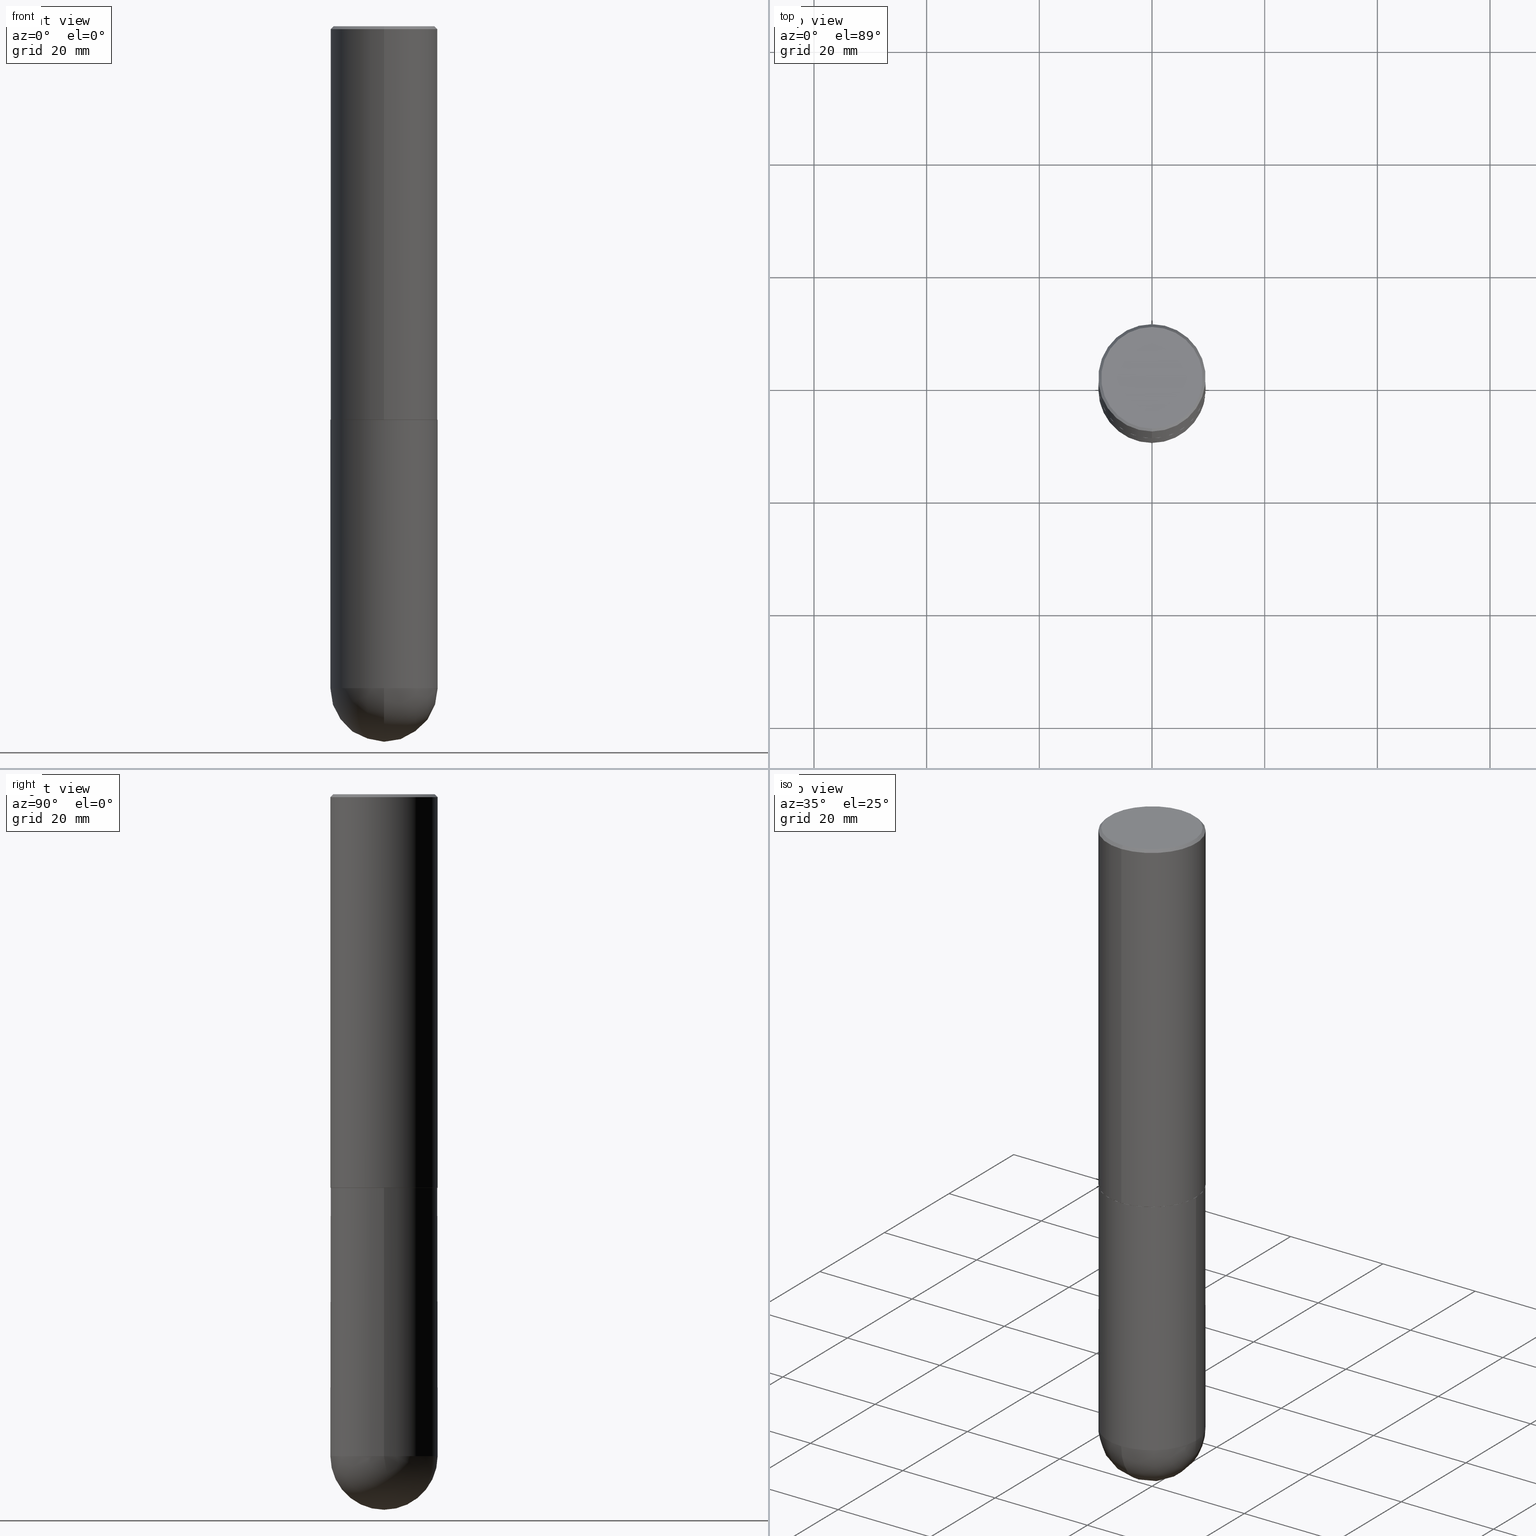
[diagram: canonical four-view strip — front | top / right | iso, engineering-drawing reading convention]
A machine part, canonical four-view strip (front | top / right | iso — engineering-drawing reading convention). The complete STEP part file that produces these views, byte-faithful:
ISO-10303-21;
HEADER;
FILE_DESCRIPTION (( 'STEP AP203' ),
    '1' );
FILE_NAME ('31798.STEP',
    '2024-02-21T16:58:11',
    ( '' ),
    ( '' ),
    'SwSTEP 2.0',
    'SolidWorks 2023',
    '' );
FILE_SCHEMA (( 'CONFIG_CONTROL_DESIGN' ));
ENDSEC;

DATA;
#1 = FACE_OUTER_BOUND ( 'NONE', #400, .T. ) ;
#2 = AXIS2_PLACEMENT_3D ( 'NONE', #162, #359, #22 ) ;
#3 = CARTESIAN_POINT ( 'NONE',  ( -2.921739217016642463E-45, 4.171151621339831914E-31, 1.194710862312470244E-16 ) ) ;
#4 = PERSON_AND_ORGANIZATION_ROLE ( 'classification_officer' ) ;
#5 = EDGE_CURVE ( 'NONE', #25, #55, #231, .T. ) ;
#6 = COORDINATED_UNIVERSAL_TIME_OFFSET ( 5, 0, .BEHIND. ) ;
#7 = DATE_AND_TIME ( #155, #338 ) ;
#8 = CARTESIAN_POINT ( 'NONE',  ( -0.3750000000000001110, 2.664535259100376486E-15, -1.844600658845590159E-29 ) ) ;
#9 = MECHANICAL_CONTEXT ( 'NONE', #326, 'mechanical' ) ;
#10 = DIRECTION ( 'NONE',  ( 1.000000000000000000, -6.982962677686265922E-15, 4.876176775795935793E-29 ) ) ;
#11 = AXIS2_PLACEMENT_3D ( 'NONE', #139, #130, #354 ) ;
#12 = SHAPE_DEFINITION_REPRESENTATION ( #217, #167 ) ;
#13 = COORDINATED_UNIVERSAL_TIME_OFFSET ( 5, 0, .BEHIND. ) ;
#14 = ORIENTED_EDGE ( 'NONE', *, *, #368, .T. ) ;
#15 = CARTESIAN_POINT ( 'NONE',  ( -2.664535259100265651E-15, -0.3750000000000165978, -4.624999999999999112 ) ) ;
#16 = ADVANCED_FACE ( 'NONE', ( #37 ), #81, .T. ) ;
#17 = DATE_AND_TIME ( #351, #150 ) ;
#18 = ORIENTED_EDGE ( 'NONE', *, *, #147, .T. ) ;
#19 = AXIS2_PLACEMENT_3D ( 'NONE', #330, #298, #24 ) ;
#20 = AXIS2_PLACEMENT_3D ( 'NONE', #59, #144, #270 ) ;
#21 = ORIENTED_EDGE ( 'NONE', *, *, #235, .T. ) ;
#22 = DIRECTION ( 'NONE',  ( -6.982962677686266711E-15, -1.000000000000000000, 3.494488891895537218E-15 ) ) ;
#23 = ORIENTED_EDGE ( 'NONE', *, *, #108, .T. ) ;
#24 = DIRECTION ( 'NONE',  ( -6.982962677686265922E-15, -1.000000000000000000, 2.913971193241877216E-15 ) ) ;
#25 = VERTEX_POINT ( 'NONE', #76 ) ;
#26 = DIRECTION ( 'NONE',  ( -2.445468806185136597E-29, 3.491481338843145583E-15, 1.000000000000000000 ) ) ;
#27 = ADVANCED_FACE ( 'NONE', ( #386 ), #48, .T. ) ;
#28 = CARTESIAN_POINT ( 'NONE',  ( 0.000000000000000000, 0.000000000000000000, 0.000000000000000000 ) ) ;
#29 = CIRCLE ( 'NONE', #345, 0.3750000000000001110 ) ;
#30 = AXIS2_PLACEMENT_3D ( 'NONE', #277, #373, #123 ) ;
#31 = ORIENTED_EDGE ( 'NONE', *, *, #178, .F. ) ;
#32 = AXIS2_PLACEMENT_3D ( 'NONE', #249, #159, #41 ) ;
#33 = DIMENSIONAL_EXPONENTS ( 1.000000000000000000, 0.000000000000000000, 0.000000000000000000, 0.000000000000000000, 0.000000000000000000, 0.000000000000000000, 0.000000000000000000 ) ;
#34 = PERSON_AND_ORGANIZATION ( #120, #112 ) ;
#35 = MANIFOLD_SOLID_BREP ( 'Body-Move/Copy2[2]', #152 ) ;
#36 = CARTESIAN_POINT ( 'NONE',  ( -2.572686749164323153E-15, -0.3750000000000000555, -0.01999999999999877570 ) ) ;
#37 = FACE_OUTER_BOUND ( 'NONE', #353, .T. ) ;
#38 =( NAMED_UNIT ( * ) SI_UNIT ( $, .STERADIAN. ) SOLID_ANGLE_UNIT ( ) );
#39 = CARTESIAN_POINT ( 'NONE',  ( 0.000000000000000000, 0.000000000000000000, 0.000000000000000000 ) ) ;
#40 = EDGE_CURVE ( 'NONE', #302, #335, #181, .T. ) ;
#41 = DIRECTION ( 'NONE',  ( 1.000000000000000000, 0.000000000000000000, 0.000000000000000000 ) ) ;
#42 = CONICAL_SURFACE ( 'NONE', #232, 0.3739999999999999991, 0.7853981633980288146 ) ;
#43 = CARTESIAN_POINT ( 'NONE',  ( 2.618611004132350016E-15, 0.3749999999999998890, -0.02000000000000139513 ) ) ;
#44 =( CONVERSION_BASED_UNIT ( 'INCH', #281 ) LENGTH_UNIT ( ) NAMED_UNIT ( #33 ) );
#45 = CARTESIAN_POINT ( 'NONE',  ( 1.131029322860625676E-28, -1.614810119214955014E-14, -4.625000000000000000 ) ) ;
#46 = ORIENTED_EDGE ( 'NONE', *, *, #58, .F. ) ;
#47 = ORIENTED_EDGE ( 'NONE', *, *, #124, .T. ) ;
#48 = CONICAL_SURFACE ( 'NONE', #236, 0.3749999999999999445, 0.7853981633974463916 ) ;
#49 = AXIS2_PLACEMENT_3D ( 'NONE', #69, #188, #156 ) ;
#50 = VERTEX_POINT ( 'NONE', #265 ) ;
#51 = PRODUCT ( '31798', '31798', '', ( #9 ) ) ;
#52 = ADVANCED_FACE ( 'NONE', ( #133 ), #262, .T. ) ;
#53 = EDGE_LOOP ( 'NONE', ( #388, #75, #286, #14 ) ) ;
#54 =( GEOMETRIC_REPRESENTATION_CONTEXT ( 3 ) GLOBAL_UNCERTAINTY_ASSIGNED_CONTEXT ( ( #261 ) ) GLOBAL_UNIT_ASSIGNED_CONTEXT ( ( #44, #319, #38 ) ) REPRESENTATION_CONTEXT ( 'NONE', 'WORKASPACE' ) );
#55 = VERTEX_POINT ( 'NONE', #43 ) ;
#56 = FACE_OUTER_BOUND ( 'NONE', #53, .T. ) ;
#57 = AXIS2_PLACEMENT_3D ( 'NONE', #276, #412, #278 ) ;
#58 = EDGE_CURVE ( 'NONE', #305, #55, #380, .T. ) ;
#59 = CARTESIAN_POINT ( 'NONE',  ( 1.097917345069237163E-28, -1.662228356028959886E-14, -4.625000000000000000 ) ) ;
#60 = DIRECTION ( 'NONE',  ( 1.000000000000000000, -6.982962677686270655E-15, 0.000000000000000000 ) ) ;
#61 = CARTESIAN_POINT ( 'NONE',  ( 0.3750000000000000555, -1.222018468595100145E-14, -2.750000000000000000 ) ) ;
#62 = ORIENTED_EDGE ( 'NONE', *, *, #95, .T. ) ;
#63 = AXIS2_PLACEMENT_3D ( 'NONE', #92, #177, #340 ) ;
#64 = PRODUCT_DEFINITION ( 'UNKNOWN', '', #289, #398 ) ;
#65 = FACE_OUTER_BOUND ( 'NONE', #300, .T. ) ;
#66 = CIRCLE ( 'NONE', #11, 0.3750000000000003886 ) ;
#67 = CC_DESIGN_PERSON_AND_ORGANIZATION_ASSIGNMENT ( #285, #125, ( #51 ) ) ;
#68 = COORDINATED_UNIVERSAL_TIME_OFFSET ( 5, 0, .BEHIND. ) ;
#69 = CARTESIAN_POINT ( 'NONE',  ( 0.000000000000000000, 0.000000000000000000, 0.000000000000000000 ) ) ;
#70 = DIRECTION ( 'NONE',  ( -1.000000000000000000, 6.982962677686265922E-15, -4.876176775795935793E-29 ) ) ;
#71 = LOCAL_TIME ( 11, 58, 11.00000000000000000, #13 ) ;
#72 = ORIENTED_EDGE ( 'NONE', *, *, #371, .F. ) ;
#73 = APPLICATION_PROTOCOL_DEFINITION ( 'international standard', 'config_control_design', 1994, #326 ) ;
#74 = EDGE_CURVE ( 'NONE', #148, #305, #287, .T. ) ;
#75 = ORIENTED_EDGE ( 'NONE', *, *, #266, .F. ) ;
#76 = CARTESIAN_POINT ( 'NONE',  ( 2.548781377355486718E-15, 0.3549999999999998157, -1.119957525566504299E-15 ) ) ;
#77 = CARTESIAN_POINT ( 'NONE',  ( 4.891123549946413576E-31, -6.982696404494408251E-17, -0.02000000000000008715 ) ) ;
#78 = PERSON_AND_ORGANIZATION ( #120, #112 ) ;
#79 = ORIENTED_EDGE ( 'NONE', *, *, #371, .T. ) ;
#80 = VERTEX_POINT ( 'NONE', #362 ) ;
#81 = SPHERICAL_SURFACE ( 'NONE', #363, 0.3750000000000003886 ) ;
#82 = VECTOR ( 'NONE', #238, 39.37007874015748143 ) ;
#83 = CC_DESIGN_PERSON_AND_ORGANIZATION_ASSIGNMENT ( #104, #224, ( #289 ) ) ;
#84 = ORIENTED_EDGE ( 'NONE', *, *, #40, .T. ) ;
#85 = VERTEX_POINT ( 'NONE', #15 ) ;
#86 = CC_DESIGN_DATE_AND_TIME_ASSIGNMENT ( #189, #99, ( #310 ) ) ;
#87 = ORIENTED_EDGE ( 'NONE', *, *, #314, .F. ) ;
#88 = AXIS2_PLACEMENT_3D ( 'NONE', #242, #370, #245 ) ;
#89 = CYLINDRICAL_SURFACE ( 'NONE', #113, 0.3750000000000001110 ) ;
#90 = CYLINDRICAL_SURFACE ( 'NONE', #307, 0.3750000000000002220 ) ;
#91 = VECTOR ( 'NONE', #247, 39.37007874015748143 ) ;
#92 = CARTESIAN_POINT ( 'NONE',  ( 6.725294881176287672E-29, -9.601207556179767631E-15, -2.749999999999999556 ) ) ;
#93 = CARTESIAN_POINT ( 'NONE',  ( -0.3750000000000000555, -1.021030217788372194E-14, -2.750000000000000000 ) ) ;
#94 = LOCAL_TIME ( 11, 58, 11.00000000000000000, #344 ) ;
#95 = EDGE_CURVE ( 'NONE', #260, #50, #312, .T. ) ;
#96 = APPROVAL_DATE_TIME ( #385, #407 ) ;
#97 = PLANE ( 'NONE',  #272 ) ;
#98 = CIRCLE ( 'NONE', #402, 0.3750000000000004441 ) ;
#99 = DATE_TIME_ROLE ( 'classification_date' ) ;
#100 = PERSON_AND_ORGANIZATION ( #120, #112 ) ;
#101 = DIRECTION ( 'NONE',  ( -2.445468806185136597E-29, 3.491481338843145583E-15, 1.000000000000000000 ) ) ;
#102 = DIRECTION ( 'NONE',  ( -1.000000000000000000, 6.982962677686266711E-15, -4.883557194083113462E-29 ) ) ;
#103 = ORIENTED_EDGE ( 'NONE', *, *, #135, .F. ) ;
#104 = PERSON_AND_ORGANIZATION ( #120, #112 ) ;
#105 = ORIENTED_EDGE ( 'NONE', *, *, #376, .F. ) ;
#106 = DIRECTION ( 'NONE',  ( 6.982962677686266711E-15, 1.000000000000000000, -3.494488891895537218E-15 ) ) ;
#107 = ORIENTED_EDGE ( 'NONE', *, *, #360, .F. ) ;
#108 = EDGE_CURVE ( 'NONE', #367, #302, #66, .T. ) ;
#109 = EDGE_LOOP ( 'NONE', ( #72, #409, #196, #129 ) ) ;
#110 = DIRECTION ( 'NONE',  ( -4.851104656540954020E-15, -0.7071067811865485719, -0.7071067811865464625 ) ) ;
#111 = CARTESIAN_POINT ( 'NONE',  ( 2.618611004132350016E-15, 0.3749999999999998890, -0.02000000000000139513 ) ) ;
#112 = ORGANIZATION ( 'UNSPECIFIED', 'UNSPECIFIED', '' ) ;
#113 = AXIS2_PLACEMENT_3D ( 'NONE', #375, #405, #145 ) ;
#114 = LINE ( 'NONE', #179, #82 ) ;
#115 = DIRECTION ( 'NONE',  ( 6.982962677686265922E-15, 1.000000000000000000, -3.491348202247189162E-15 ) ) ;
#116 = CC_DESIGN_APPROVAL ( #384, ( #310 ) ) ;
#117 = DIRECTION ( 'NONE',  ( 1.000000000000000000, -6.982962677686270655E-15, 0.000000000000000000 ) ) ;
#118 = FACE_OUTER_BOUND ( 'NONE', #138, .T. ) ;
#119 = FACE_OUTER_BOUND ( 'NONE', #131, .T. ) ;
#120 = PERSON ( 'UNSPECIFIED', 'UNSPECIFIED', 'UNSPECIFIED', ('UNSPECIFIED'), ('UNSPECIFIED'), ('UNSPECIFIED') ) ;
#121 = DIRECTION ( 'NONE',  ( -2.445561774973196384E-29, 3.491348202247189162E-15, 1.000000000000000000 ) ) ;
#122 = APPROVAL_DATE_TIME ( #283, #384 ) ;
#123 = DIRECTION ( 'NONE',  ( 1.000000000000000000, -6.982962677686266711E-15, 0.000000000000000000 ) ) ;
#124 = EDGE_CURVE ( 'NONE', #335, #85, #29, .T. ) ;
#125 = PERSON_AND_ORGANIZATION_ROLE ( 'design_owner' ) ;
#126 = LINE ( 'NONE', #322, #268 ) ;
#127 = CYLINDRICAL_SURFACE ( 'NONE', #170, 0.3750000000000001110 ) ;
#128 = ADVANCED_FACE ( 'NONE', ( #205 ), #90, .T. ) ;
#129 = ORIENTED_EDGE ( 'NONE', *, *, #5, .F. ) ;
#130 = DIRECTION ( 'NONE',  ( 1.000000000000000000, -6.982962677686265922E-15, 4.883557194083112340E-29 ) ) ;
#131 = EDGE_LOOP ( 'NONE', ( #84, #264, #31, #107, #254 ) ) ;
#132 = CIRCLE ( 'NONE', #57, 0.3749999999999999445 ) ;
#133 = FACE_OUTER_BOUND ( 'NONE', #323, .T. ) ;
#134 = CARTESIAN_POINT ( 'NONE',  ( -2.611628041454596160E-15, -0.3740000000000096581, -2.749999999999998224 ) ) ;
#135 = EDGE_CURVE ( 'NONE', #365, #80, #292, .T. ) ;
#136 = ORIENTED_EDGE ( 'NONE', *, *, #274, .T. ) ;
#137 = DIRECTION ( 'NONE',  ( -1.000000000000000000, 6.982962677686266711E-15, -4.883557194083113462E-29 ) ) ;
#138 = EDGE_LOOP ( 'NONE', ( #141, #397, #172, #331 ) ) ;
#139 = CARTESIAN_POINT ( 'NONE',  ( 1.097917345069237163E-28, -1.662228356028959886E-14, -4.625000000000000000 ) ) ;
#140 = APPROVAL_PERSON_ORGANIZATION ( #163, #407, #347 ) ;
#141 = ORIENTED_EDGE ( 'NONE', *, *, #168, .T. ) ;
#142 = DIRECTION ( 'NONE',  ( -2.445468806185136597E-29, 3.491481338843145583E-15, 1.000000000000000000 ) ) ;
#143 = EDGE_CURVE ( 'NONE', #169, #195, #284, .T. ) ;
#144 = DIRECTION ( 'NONE',  ( -1.000000000000000000, 7.105427357601001070E-15, -4.926315508542082329E-29 ) ) ;
#145 = DIRECTION ( 'NONE',  ( 1.000000000000000000, -6.982962677686265922E-15, 4.876176775795935793E-29 ) ) ;
#146 = DIRECTION ( 'NONE',  ( 4.937700262164537787E-15, 0.7071067811865436870, -0.7071067811865513475 ) ) ;
#147 = EDGE_CURVE ( 'NONE', #367, #85, #293, .T. ) ;
#148 = VERTEX_POINT ( 'NONE', #306 ) ;
#149 = DIRECTION ( 'NONE',  ( -2.445468806185136877E-29, 3.491481338843145188E-15, 1.000000000000000000 ) ) ;
#150 = LOCAL_TIME ( 11, 58, 11.00000000000000000, #290 ) ;
#151 = CC_DESIGN_PERSON_AND_ORGANIZATION_ASSIGNMENT ( #78, #4, ( #310 ) ) ;
#152 = CLOSED_SHELL ( 'NONE', ( #175, #296, #27, #342, #128, #206, #393, #352 ) ) ;
#153 = CARTESIAN_POINT ( 'NONE',  ( 6.725294881176288793E-29, -9.601207556179769209E-15, -2.750000000000000000 ) ) ;
#154 = CIRCLE ( 'NONE', #187, 0.3549999999999998157 ) ;
#155 = CALENDAR_DATE ( 2024, 21, 2 ) ;
#156 = DIRECTION ( 'NONE',  ( -6.982962677686266711E-15, -1.000000000000000000, 3.491348202247188767E-15 ) ) ;
#157 = AXIS2_PLACEMENT_3D ( 'NONE', #183, #142, #336 ) ;
#158 = CIRCLE ( 'NONE', #204, 0.3739999999999999991 ) ;
#159 = DIRECTION ( 'NONE',  ( 0.000000000000000000, 0.000000000000000000, 1.000000000000000000 ) ) ;
#160 = DIRECTION ( 'NONE',  ( -6.982962677686266711E-15, -1.000000000000000000, 3.491348202247189162E-15 ) ) ;
#161 = MANIFOLD_SOLID_BREP ( 'Body-Move/Copy2[1]', #258 ) ;
#162 = CARTESIAN_POINT ( 'NONE',  ( 4.891123549946413576E-31, -6.982696404494408251E-17, -0.02000000000000008715 ) ) ;
#163 = PERSON_AND_ORGANIZATION ( #120, #112 ) ;
#164 = LOCAL_TIME ( 11, 58, 11.00000000000000000, #6 ) ;
#165 = ORIENTED_EDGE ( 'NONE', *, *, #124, .F. ) ;
#166 = DIRECTION ( 'NONE',  ( 2.445561774973196384E-29, -3.491348202247189162E-15, -1.000000000000000000 ) ) ;
#167 = ADVANCED_BREP_SHAPE_REPRESENTATION ( '31798', ( #161, #35, #32 ), #54 ) ;
#168 = EDGE_CURVE ( 'NONE', #80, #365, #158, .T. ) ;
#169 = VERTEX_POINT ( 'NONE', #93 ) ;
#170 = AXIS2_PLACEMENT_3D ( 'NONE', #39, #101, #10 ) ;
#171 = CARTESIAN_POINT ( 'NONE',  ( 1.097917345069237163E-28, -1.662228356028959886E-14, -4.625000000000000000 ) ) ;
#172 = ORIENTED_EDGE ( 'NONE', *, *, #95, .F. ) ;
#173 = DIRECTION ( 'NONE',  ( 1.000000000000000000, -6.982962677686270655E-15, 0.000000000000000000 ) ) ;
#174 = ORIENTED_EDGE ( 'NONE', *, *, #108, .F. ) ;
#175 = ADVANCED_FACE ( 'NONE', ( #118 ), #369, .T. ) ;
#176 = ORIENTED_EDGE ( 'NONE', *, *, #274, .F. ) ;
#177 = DIRECTION ( 'NONE',  ( -2.445561774973196384E-29, 3.491348202247189162E-15, 1.000000000000000000 ) ) ;
#178 = EDGE_CURVE ( 'NONE', #195, #169, #259, .T. ) ;
#179 = CARTESIAN_POINT ( 'NONE',  ( 2.657429831742841742E-15, 0.3739999999999903957, -2.750000000000000444 ) ) ;
#180 = CARTESIAN_POINT ( 'NONE',  ( 1.191225862093391378E-28, -1.790862693487176734E-14, -5.000000000000000000 ) ) ;
#181 = CIRCLE ( 'NONE', #271, 0.3750000000000001110 ) ;
#182 = PLANE ( 'NONE',  #320 ) ;
#183 = CARTESIAN_POINT ( 'NONE',  ( 6.725039217009124520E-29, -9.601573681818649859E-15, -2.750000000000000000 ) ) ;
#184 = LINE ( 'NONE', #239, #333 ) ;
#185 = DIRECTION ( 'NONE',  ( -2.445561774973196384E-29, 3.491348202247189162E-15, 1.000000000000000000 ) ) ;
#186 = PLANE ( 'NONE',  #364 ) ;
#187 = AXIS2_PLACEMENT_3D ( 'NONE', #3, #121, #214 ) ;
#188 = DIRECTION ( 'NONE',  ( -2.445561774973196384E-29, 3.491348202247189162E-15, 1.000000000000000000 ) ) ;
#189 = DATE_AND_TIME ( #280, #94 ) ;
#190 = DIRECTION ( 'NONE',  ( -2.445468806185136597E-29, 3.491481338843145583E-15, 1.000000000000000000 ) ) ;
#191 = DIRECTION ( 'NONE',  ( -2.445561774973196384E-29, 3.491348202247189162E-15, 1.000000000000000000 ) ) ;
#192 = CC_DESIGN_DATE_AND_TIME_ASSIGNMENT ( #17, #256, ( #64 ) ) ;
#193 = EDGE_LOOP ( 'NONE', ( #226, #21, #136, #332 ) ) ;
#194 = SECURITY_CLASSIFICATION_LEVEL ( 'unclassified' ) ;
#195 = VERTEX_POINT ( 'NONE', #61 ) ;
#196 = ORIENTED_EDGE ( 'NONE', *, *, #58, .T. ) ;
#197 = AXIS2_PLACEMENT_3D ( 'NONE', #77, #396, #106 ) ;
#198 = DIRECTION ( 'NONE',  ( 6.982962677686266711E-15, 1.000000000000000000, -3.494488891895537218E-15 ) ) ;
#199 = EDGE_LOOP ( 'NONE', ( #87, #47, #403, #223, #325 ) ) ;
#200 = EDGE_CURVE ( 'NONE', #50, #55, #337, .T. ) ;
#201 = ORIENTED_EDGE ( 'NONE', *, *, #143, .T. ) ;
#202 = DIRECTION ( 'NONE',  ( -4.937700262167413974E-15, -0.7071067811869555797, 0.7071067811861394548 ) ) ;
#203 = ORIENTED_EDGE ( 'NONE', *, *, #178, .T. ) ;
#204 = AXIS2_PLACEMENT_3D ( 'NONE', #213, #411, #240 ) ;
#205 = FACE_OUTER_BOUND ( 'NONE', #193, .T. ) ;
#206 = ADVANCED_FACE ( 'NONE', ( #1 ), #42, .T. ) ;
#207 = CARTESIAN_POINT ( 'NONE',  ( 2.478951750578623420E-15, 0.3549999999999998157, -1.179693068682128070E-15 ) ) ;
#208 = CARTESIAN_POINT ( 'NONE',  ( 6.725294881176287672E-29, -9.601207556179767631E-15, -2.749999999999999556 ) ) ;
#209 = APPROVAL_PERSON_ORGANIZATION ( #377, #384, #316 ) ;
#210 = FACE_OUTER_BOUND ( 'NONE', #383, .T. ) ;
#211 = VECTOR ( 'NONE', #378, 39.37007874015748143 ) ;
#212 = DIRECTION ( 'NONE',  ( -2.445561774973196384E-29, 3.491348202247189162E-15, 1.000000000000000000 ) ) ;
#213 = CARTESIAN_POINT ( 'NONE',  ( 6.725294881176287672E-29, -9.601207556179767631E-15, -2.749999999999999556 ) ) ;
#214 = DIRECTION ( 'NONE',  ( -6.982962677686266711E-15, -1.000000000000000000, 3.491348202247189162E-15 ) ) ;
#215 = CARTESIAN_POINT ( 'NONE',  ( 0.3750000000000001110, -1.549344844111645238E-14, -4.625000000000000000 ) ) ;
#216 = APPROVAL_ROLE ( '' ) ;
#217 = PRODUCT_DEFINITION_SHAPE ( 'NONE', 'NONE',  #64 ) ;
#218 = APPROVAL_DATE_TIME ( #7, #309 ) ;
#219 = FACE_OUTER_BOUND ( 'NONE', #358, .T. ) ;
#220 = ADVANCED_FACE ( 'NONE', ( #119 ), #89, .T. ) ;
#221 = PERSON_AND_ORGANIZATION_ROLE ( 'creator' ) ;
#222 = CARTESIAN_POINT ( 'NONE',  ( -2.921739217016642463E-45, 4.171151621339831914E-31, 1.194710862312470244E-16 ) ) ;
#223 = ORIENTED_EDGE ( 'NONE', *, *, #360, .T. ) ;
#224 = PERSON_AND_ORGANIZATION_ROLE ( 'creator' ) ;
#225 = FACE_OUTER_BOUND ( 'NONE', #297, .T. ) ;
#226 = ORIENTED_EDGE ( 'NONE', *, *, #200, .F. ) ;
#227 = DIRECTION ( 'NONE',  ( 6.982962677686266711E-15, 1.000000000000000000, -2.913971193241878005E-15 ) ) ;
#228 = CC_DESIGN_APPROVAL ( #407, ( #64 ) ) ;
#229 = ORIENTED_EDGE ( 'NONE', *, *, #288, .F. ) ;
#230 = VECTOR ( 'NONE', #110, 39.37007874015748143 ) ;
#231 = LINE ( 'NONE', #111, #390 ) ;
#232 = AXIS2_PLACEMENT_3D ( 'NONE', #208, #212, #304 ) ;
#233 = PRODUCT_RELATED_PRODUCT_CATEGORY ( 'detail', '', ( #51 ) ) ;
#234 = ORIENTED_EDGE ( 'NONE', *, *, #168, .F. ) ;
#235 = EDGE_CURVE ( 'NONE', #50, #260, #98, .T. ) ;
#236 = AXIS2_PLACEMENT_3D ( 'NONE', #389, #166, #198 ) ;
#237 = AXIS2_PLACEMENT_3D ( 'NONE', #303, #26, #117 ) ;
#238 = DIRECTION ( 'NONE',  ( 5.024295867790978808E-15, 0.7071067811869604647, 0.7071067811861345698 ) ) ;
#239 = CARTESIAN_POINT ( 'NONE',  ( 0.3750000000000001110, -2.618611004132350411E-15, 1.828566290923476483E-29 ) ) ;
#240 = DIRECTION ( 'NONE',  ( -6.982962677686266711E-15, -1.000000000000000000, 2.921762560068730595E-15 ) ) ;
#241 = DIRECTION ( 'NONE',  ( -2.445561774973196103E-29, 3.491348202247189162E-15, 1.000000000000000000 ) ) ;
#242 = CARTESIAN_POINT ( 'NONE',  ( 6.725294881176287672E-29, -9.601207556179767631E-15, -2.749999999999999556 ) ) ;
#243 = DIRECTION ( 'NONE',  ( -6.982962677686266711E-15, -1.000000000000000000, 3.491348202247188767E-15 ) ) ;
#244 =( LENGTH_UNIT ( ) NAMED_UNIT ( * ) SI_UNIT ( $, .METRE. ) );
#245 = DIRECTION ( 'NONE',  ( -6.982962677686266711E-15, -1.000000000000000000, 2.921762560068730595E-15 ) ) ;
#246 = CALENDAR_DATE ( 2024, 21, 2 ) ;
#247 = DIRECTION ( 'NONE',  ( -2.445468806185136877E-29, 3.491481338843145188E-15, 1.000000000000000000 ) ) ;
#248 = EDGE_CURVE ( 'NONE', #365, #50, #114, .T. ) ;
#249 = CARTESIAN_POINT ( 'NONE',  ( 0.000000000000000000, 0.000000000000000000, 0.000000000000000000 ) ) ;
#250 = FACE_OUTER_BOUND ( 'NONE', #199, .T. ) ;
#251 = APPLICATION_CONTEXT ( 'configuration controlled 3d designs of mechanical parts and assemblies' ) ;
#252 = CALENDAR_DATE ( 2024, 21, 2 ) ;
#253 = APPLICATION_PROTOCOL_DEFINITION ( 'international standard', 'config_control_design', 1994, #251 ) ;
#254 = ORIENTED_EDGE ( 'NONE', *, *, #288, .T. ) ;
#255 = CARTESIAN_POINT ( 'NONE',  ( 1.131029322860625676E-28, -1.614810119214955014E-14, -4.625000000000000000 ) ) ;
#256 = DATE_TIME_ROLE ( 'creation_date' ) ;
#257 = DIRECTION ( 'NONE',  ( 1.000000000000000000, -6.982962677686270655E-15, 0.000000000000000000 ) ) ;
#258 = CLOSED_SHELL ( 'NONE', ( #220, #16, #52, #334, #269 ) ) ;
#259 = CIRCLE ( 'NONE', #30, 0.3750000000000000555 ) ;
#260 = VERTEX_POINT ( 'NONE', #348 ) ;
#261 = UNCERTAINTY_MEASURE_WITH_UNIT (LENGTH_MEASURE( 1.000000000000000082E-05 ), #44, 'distance_accuracy_value', 'NONE');
#262 = SPHERICAL_SURFACE ( 'NONE', #404, 0.3750000000000003886 ) ;
#263 = ORIENTED_EDGE ( 'NONE', *, *, #135, .T. ) ;
#264 = ORIENTED_EDGE ( 'NONE', *, *, #314, .T. ) ;
#265 = CARTESIAN_POINT ( 'NONE',  ( 2.664535259100411985E-15, 0.3749999999999907851, -2.749000000000000998 ) ) ;
#266 = EDGE_CURVE ( 'NONE', #25, #148, #346, .T. ) ;
#267 = ORIENTED_EDGE ( 'NONE', *, *, #235, .F. ) ;
#268 = VECTOR ( 'NONE', #191, 39.37007874015748143 ) ;
#269 = ADVANCED_FACE ( 'NONE', ( #250 ), #127, .T. ) ;
#270 = DIRECTION ( 'NONE',  ( -7.105427357600999492E-15, -1.000000000000000000, 0.000000000000000000 ) ) ;
#271 = AXIS2_PLACEMENT_3D ( 'NONE', #321, #295, #173 ) ;
#272 = AXIS2_PLACEMENT_3D ( 'NONE', #382, #350, #70 ) ;
#273 = ORIENTED_EDGE ( 'NONE', *, *, #248, .F. ) ;
#274 = EDGE_CURVE ( 'NONE', #260, #305, #126, .T. ) ;
#275 = DIRECTION ( 'NONE',  ( -2.445561774973196384E-29, 3.491348202247189162E-15, 1.000000000000000000 ) ) ;
#276 = CARTESIAN_POINT ( 'NONE',  ( 4.891123549946413576E-31, -6.982696404494408251E-17, -0.02000000000000008715 ) ) ;
#277 = CARTESIAN_POINT ( 'NONE',  ( 6.725039217009124520E-29, -9.601573681818649859E-15, -2.750000000000000000 ) ) ;
#278 = DIRECTION ( 'NONE',  ( -6.982962677686266711E-15, -1.000000000000000000, 3.494488891895537218E-15 ) ) ;
#279 = DIRECTION ( 'NONE',  ( -6.982962677686265922E-15, -1.000000000000000000, 3.491348202247189162E-15 ) ) ;
#280 = CALENDAR_DATE ( 2024, 21, 2 ) ;
#281 = LENGTH_MEASURE_WITH_UNIT ( LENGTH_MEASURE( 0.02539999999999999897 ), #244 );
#282 = DIRECTION ( 'NONE',  ( -2.445561774973196384E-29, 3.491348202247189162E-15, 1.000000000000000000 ) ) ;
#283 = DATE_AND_TIME ( #246, #164 ) ;
#284 = CIRCLE ( 'NONE', #157, 0.3750000000000000555 ) ;
#285 = PERSON_AND_ORGANIZATION ( #120, #112 ) ;
#286 = ORIENTED_EDGE ( 'NONE', *, *, #5, .T. ) ;
#287 = LINE ( 'NONE', #399, #230 ) ;
#288 = EDGE_CURVE ( 'NONE', #394, #302, #313, .T. ) ;
#289 = PRODUCT_DEFINITION_FORMATION_WITH_SPECIFIED_SOURCE ( 'ANY', '', #51, .NOT_KNOWN. ) ;
#290 = COORDINATED_UNIVERSAL_TIME_OFFSET ( 5, 0, .BEHIND. ) ;
#291 = ORIENTED_EDGE ( 'NONE', *, *, #147, .F. ) ;
#292 = CIRCLE ( 'NONE', #63, 0.3739999999999999991 ) ;
#293 = CIRCLE ( 'NONE', #20, 0.3750000000000003886 ) ;
#294 = ORIENTED_EDGE ( 'NONE', *, *, #339, .T. ) ;
#295 = DIRECTION ( 'NONE',  ( -2.445468806185136597E-29, 3.491481338843145583E-15, 1.000000000000000000 ) ) ;
#296 = ADVANCED_FACE ( 'NONE', ( #225 ), #357, .T. ) ;
#297 = EDGE_LOOP ( 'NONE', ( #62, #361, #46, #176 ) ) ;
#298 = DIRECTION ( 'NONE',  ( -2.445561774973196384E-29, 3.491348202247189162E-15, 1.000000000000000000 ) ) ;
#299 = APPROVAL_PERSON_ORGANIZATION ( #34, #309, #216 ) ;
#300 = EDGE_LOOP ( 'NONE', ( #234, #103 ) ) ;
#301 = CC_DESIGN_PERSON_AND_ORGANIZATION_ASSIGNMENT ( #356, #324, ( #289 ) ) ;
#302 = VERTEX_POINT ( 'NONE', #315 ) ;
#303 = CARTESIAN_POINT ( 'NONE',  ( 1.131029322860625676E-28, -1.614810119214955014E-14, -4.625000000000000000 ) ) ;
#304 = DIRECTION ( 'NONE',  ( -6.982962677686266711E-15, -1.000000000000000000, 2.921762560068730595E-15 ) ) ;
#305 = VERTEX_POINT ( 'NONE', #36 ) ;
#306 = CARTESIAN_POINT ( 'NONE',  ( -2.504081769186607821E-15, -0.3549999999999998157, 1.358899698028998397E-15 ) ) ;
#307 = AXIS2_PLACEMENT_3D ( 'NONE', #28, #275, #243 ) ;
#308 = AXIS2_PLACEMENT_3D ( 'NONE', #45, #190, #257 ) ;
#309 = APPROVAL ( #392, 'UNSPECIFIED' ) ;
#310 = SECURITY_CLASSIFICATION ( '', '', #194 ) ;
#311 = DIRECTION ( 'NONE',  ( -6.982962677686265922E-15, -1.000000000000000000, 2.913971193241877216E-15 ) ) ;
#312 = CIRCLE ( 'NONE', #19, 0.3750000000000004441 ) ;
#313 = CIRCLE ( 'NONE', #308, 0.3750000000000001110 ) ;
#314 = EDGE_CURVE ( 'NONE', #335, #169, #317, .T. ) ;
#315 = CARTESIAN_POINT ( 'NONE',  ( 2.618611004132463218E-15, 0.3749999999999838463, -4.625000000000000888 ) ) ;
#316 = APPROVAL_ROLE ( '' ) ;
#317 = LINE ( 'NONE', #8, #91 ) ;
#318 = CARTESIAN_POINT ( 'NONE',  ( -0.3750000000000001110, -1.021030217788372352E-14, -4.625000000000000000 ) ) ;
#319 =( NAMED_UNIT ( * ) PLANE_ANGLE_UNIT ( ) SI_UNIT ( $, .RADIAN. ) );
#320 = AXIS2_PLACEMENT_3D ( 'NONE', #207, #408, #115 ) ;
#321 = CARTESIAN_POINT ( 'NONE',  ( 1.131029322860625676E-28, -1.614810119214955014E-14, -4.625000000000000000 ) ) ;
#322 = CARTESIAN_POINT ( 'NONE',  ( -2.618611004132351594E-15, -0.3750000000000002220, 1.309255575842696626E-15 ) ) ;
#323 = EDGE_LOOP ( 'NONE', ( #291, #23, #229, #105 ) ) ;
#324 = PERSON_AND_ORGANIZATION_ROLE ( 'design_supplier' ) ;
#325 = ORIENTED_EDGE ( 'NONE', *, *, #143, .F. ) ;
#326 = APPLICATION_CONTEXT ( 'configuration controlled 3d designs of mechanical parts and assemblies' ) ;
#327 = CC_DESIGN_PERSON_AND_ORGANIZATION_ASSIGNMENT ( #100, #221, ( #64 ) ) ;
#328 = VECTOR ( 'NONE', #202, 39.37007874015748143 ) ;
#329 = ORIENTED_EDGE ( 'NONE', *, *, #266, .T. ) ;
#330 = CARTESIAN_POINT ( 'NONE',  ( 6.722849319401317549E-29, -9.597716207977523912E-15, -2.749000000000000110 ) ) ;
#331 = ORIENTED_EDGE ( 'NONE', *, *, #339, .F. ) ;
#332 = ORIENTED_EDGE ( 'NONE', *, *, #368, .F. ) ;
#333 = VECTOR ( 'NONE', #149, 39.37007874015748143 ) ;
#334 = ADVANCED_FACE ( 'NONE', ( #219 ), #97, .F. ) ;
#335 = VERTEX_POINT ( 'NONE', #318 ) ;
#336 = DIRECTION ( 'NONE',  ( 1.000000000000000000, -6.982962677686266711E-15, 0.000000000000000000 ) ) ;
#337 = LINE ( 'NONE', #374, #211 ) ;
#338 = LOCAL_TIME ( 11, 58, 11.00000000000000000, #68 ) ;
#339 = EDGE_CURVE ( 'NONE', #80, #260, #366, .T. ) ;
#340 = DIRECTION ( 'NONE',  ( -6.982962677686266711E-15, -1.000000000000000000, 2.921762560068730595E-15 ) ) ;
#341 = CARTESIAN_POINT ( 'NONE',  ( 6.722849319401317549E-29, -9.597716207977523912E-15, -2.749000000000000110 ) ) ;
#342 = ADVANCED_FACE ( 'NONE', ( #56 ), #381, .T. ) ;
#343 = CC_DESIGN_APPROVAL ( #309, ( #289 ) ) ;
#344 = COORDINATED_UNIVERSAL_TIME_OFFSET ( 5, 0, .BEHIND. ) ;
#345 = AXIS2_PLACEMENT_3D ( 'NONE', #255, #410, #60 ) ;
#346 = CIRCLE ( 'NONE', #406, 0.3549999999999998157 ) ;
#347 = APPROVAL_ROLE ( '' ) ;
#348 = CARTESIAN_POINT ( 'NONE',  ( -2.618611004132285330E-15, -0.3750000000000100475, -2.748999999999999222 ) ) ;
#349 = APPROVAL_STATUS ( 'not_yet_approved' ) ;
#350 = DIRECTION ( 'NONE',  ( 2.438088387897960049E-29, -3.491481338843145188E-15, -1.000000000000000000 ) ) ;
#351 = CALENDAR_DATE ( 2024, 21, 2 ) ;
#352 = ADVANCED_FACE ( 'NONE', ( #210 ), #182, .F. ) ;
#353 = EDGE_LOOP ( 'NONE', ( #174, #18, #165, #355 ) ) ;
#354 = DIRECTION ( 'NONE',  ( 6.982962677686265922E-15, 1.000000000000000000, 0.000000000000000000 ) ) ;
#355 = ORIENTED_EDGE ( 'NONE', *, *, #40, .F. ) ;
#356 = PERSON_AND_ORGANIZATION ( #120, #112 ) ;
#357 = CYLINDRICAL_SURFACE ( 'NONE', #49, 0.3750000000000002220 ) ;
#358 = EDGE_LOOP ( 'NONE', ( #203, #201 ) ) ;
#359 = DIRECTION ( 'NONE',  ( -2.445561774973196384E-29, 3.491348202247189162E-15, 1.000000000000000000 ) ) ;
#360 = EDGE_CURVE ( 'NONE', #394, #195, #184, .T. ) ;
#361 = ORIENTED_EDGE ( 'NONE', *, *, #200, .T. ) ;
#362 = CARTESIAN_POINT ( 'NONE',  ( -2.611628041454596160E-15, -0.3740000000000096581, -2.749999999999998224 ) ) ;
#363 = AXIS2_PLACEMENT_3D ( 'NONE', #171, #102, #227 ) ;
#364 = AXIS2_PLACEMENT_3D ( 'NONE', #153, #241, #279 ) ;
#365 = VERTEX_POINT ( 'NONE', #372 ) ;
#366 = LINE ( 'NONE', #134, #328 ) ;
#367 = VERTEX_POINT ( 'NONE', #180 ) ;
#368 = EDGE_CURVE ( 'NONE', #55, #305, #132, .T. ) ;
#369 = CONICAL_SURFACE ( 'NONE', #88, 0.3739999999999999991, 0.7853981633980288146 ) ;
#370 = DIRECTION ( 'NONE',  ( -2.445561774973196384E-29, 3.491348202247189162E-15, 1.000000000000000000 ) ) ;
#371 = EDGE_CURVE ( 'NONE', #148, #25, #154, .T. ) ;
#372 = CARTESIAN_POINT ( 'NONE',  ( 2.660982545421643429E-15, 0.3739999999999903957, -2.750000000000000444 ) ) ;
#373 = DIRECTION ( 'NONE',  ( -2.445468806185136597E-29, 3.491481338843145583E-15, 1.000000000000000000 ) ) ;
#374 = CARTESIAN_POINT ( 'NONE',  ( 2.664535259100376880E-15, 0.3750000000000002220, -1.309255575842696626E-15 ) ) ;
#375 = CARTESIAN_POINT ( 'NONE',  ( 0.000000000000000000, 0.000000000000000000, 0.000000000000000000 ) ) ;
#376 = EDGE_CURVE ( 'NONE', #85, #394, #391, .T. ) ;
#377 = PERSON_AND_ORGANIZATION ( #120, #112 ) ;
#378 = DIRECTION ( 'NONE',  ( -2.445561774973196384E-29, 3.491348202247189162E-15, 1.000000000000000000 ) ) ;
#379 = APPROVAL_STATUS ( 'not_yet_approved' ) ;
#380 = CIRCLE ( 'NONE', #2, 0.3749999999999999445 ) ;
#381 = CONICAL_SURFACE ( 'NONE', #197, 0.3749999999999999445, 0.7853981633974463916 ) ;
#382 = CARTESIAN_POINT ( 'NONE',  ( 2.618611004132417464E-15, 0.3749999999999903966, -2.750000000000000888 ) ) ;
#383 = EDGE_LOOP ( 'NONE', ( #329, #79 ) ) ;
#384 = APPROVAL ( #349, 'UNSPECIFIED' ) ;
#385 = DATE_AND_TIME ( #252, #71 ) ;
#386 = FACE_OUTER_BOUND ( 'NONE', #109, .T. ) ;
#387 = CC_DESIGN_SECURITY_CLASSIFICATION ( #310, ( #289 ) ) ;
#388 = ORIENTED_EDGE ( 'NONE', *, *, #74, .F. ) ;
#389 = CARTESIAN_POINT ( 'NONE',  ( 4.891123549946413576E-31, -6.982696404494408251E-17, -0.02000000000000008715 ) ) ;
#390 = VECTOR ( 'NONE', #146, 39.37007874015748143 ) ;
#391 = CIRCLE ( 'NONE', #237, 0.3750000000000001110 ) ;
#392 = APPROVAL_STATUS ( 'not_yet_approved' ) ;
#393 = ADVANCED_FACE ( 'NONE', ( #65 ), #186, .F. ) ;
#394 = VERTEX_POINT ( 'NONE', #215 ) ;
#395 = CARTESIAN_POINT ( 'NONE',  ( 1.097917345069237163E-28, -1.662228356028959886E-14, -4.625000000000000000 ) ) ;
#396 = DIRECTION ( 'NONE',  ( 2.445561774973196384E-29, -3.491348202247189162E-15, -1.000000000000000000 ) ) ;
#397 = ORIENTED_EDGE ( 'NONE', *, *, #248, .T. ) ;
#398 = DESIGN_CONTEXT ( 'detailed design', #251, 'design' ) ;
#399 = CARTESIAN_POINT ( 'NONE',  ( -2.572686749164323153E-15, -0.3750000000000000555, -0.01999999999999877570 ) ) ;
#400 = EDGE_LOOP ( 'NONE', ( #273, #263, #294, #267 ) ) ;
#401 = DIRECTION ( 'NONE',  ( 6.982962677686266711E-15, 1.000000000000000000, -2.913971193241878005E-15 ) ) ;
#402 = AXIS2_PLACEMENT_3D ( 'NONE', #341, #185, #311 ) ;
#403 = ORIENTED_EDGE ( 'NONE', *, *, #376, .T. ) ;
#404 = AXIS2_PLACEMENT_3D ( 'NONE', #395, #137, #401 ) ;
#405 = DIRECTION ( 'NONE',  ( -2.445468806185136597E-29, 3.491481338843145583E-15, 1.000000000000000000 ) ) ;
#406 = AXIS2_PLACEMENT_3D ( 'NONE', #222, #282, #160 ) ;
#407 = APPROVAL ( #379, 'UNSPECIFIED' ) ;
#408 = DIRECTION ( 'NONE',  ( 2.445561774973196103E-29, -3.491348202247189162E-15, -1.000000000000000000 ) ) ;
#409 = ORIENTED_EDGE ( 'NONE', *, *, #74, .T. ) ;
#410 = DIRECTION ( 'NONE',  ( -2.445468806185136597E-29, 3.491481338843145583E-15, 1.000000000000000000 ) ) ;
#411 = DIRECTION ( 'NONE',  ( -2.445561774973196384E-29, 3.491348202247189162E-15, 1.000000000000000000 ) ) ;
#412 = DIRECTION ( 'NONE',  ( -2.445561774973196384E-29, 3.491348202247189162E-15, 1.000000000000000000 ) ) ;
ENDSEC;
END-ISO-10303-21;
